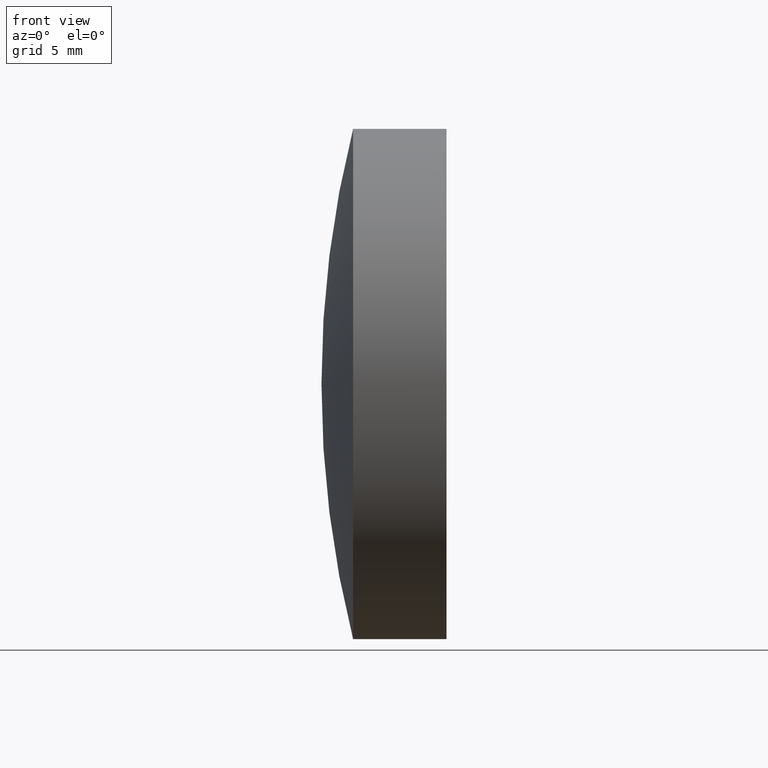
[diagram: clean part render]
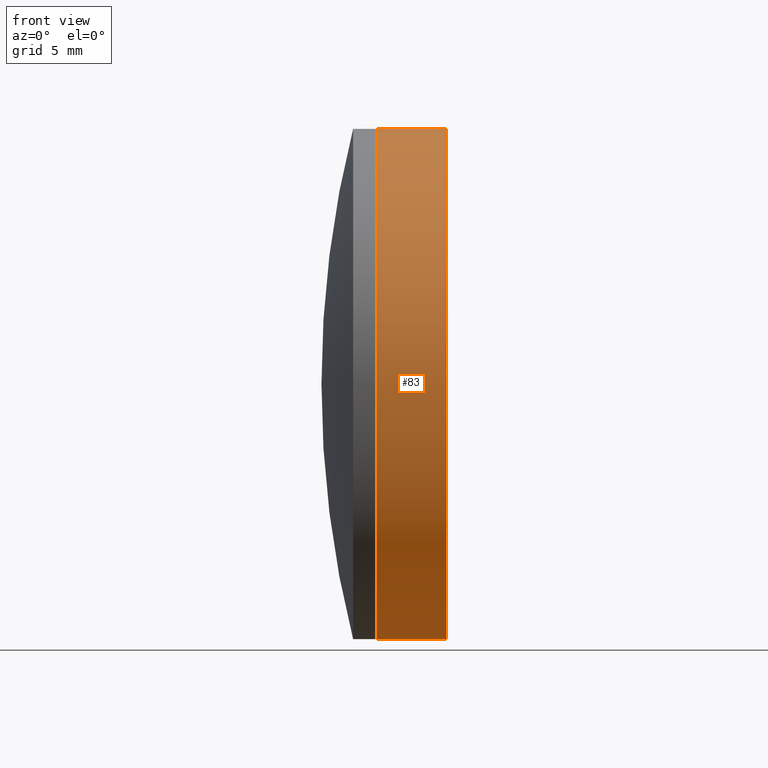
[diagram: same view with one face highlighted and labeled with its STEP entity id]
A machine part, front view. The second image highlights one B-rep face of the part: STEP entity #83.
In plain terms, the highlighted cylindrical surface (partial cylindrical patch) has radius 12.7 mm, axis along (-1, -0, -0).
Its self-contained STEP definition (entity closure, byte-faithful):
#3 = DIRECTION ( 'NONE',  ( 0.0000000000000000000, 0.0000000000000000000, 1.000000000000000000 ) ) ;
#6 = CARTESIAN_POINT ( 'NONE',  ( 335.1955762872631200, 0.0000000000000000000, 12.70000000000003100 ) ) ;
#16 = CARTESIAN_POINT ( 'NONE',  ( -0.5519199926577972300, 0.0000000000000000000, 12.70000000000001400 ) ) ;
#31 = CIRCLE ( 'NONE', #218, 12.70000000000003300 ) ;
#37 = CYLINDRICAL_SURFACE ( 'NONE', #100, 12.70000000000001400 ) ;
#38 = CARTESIAN_POINT ( 'NONE',  ( 335.1955762872631200, 0.0000000000000000000, 0.0000000000000000000 ) ) ;
#40 = CARTESIAN_POINT ( 'NONE',  ( -0.5519199926577972300, 1.555301434917140200E-015, -12.70000000000001400 ) ) ;
#60 = CARTESIAN_POINT ( 'NONE',  ( 338.6678479171338800, 0.0000000000000000000, 0.0000000000000000000 ) ) ;
#71 = DIRECTION ( 'NONE',  ( 0.0000000000000000000, 0.0000000000000000000, 1.000000000000000000 ) ) ;
#80 = VECTOR ( 'NONE', #205, 1000.000000000000000 ) ;
#83 = ADVANCED_FACE ( 'NONE', ( #105 ), #37, .T. ) ;
#86 = VERTEX_POINT ( 'NONE', #6 ) ;
#96 = EDGE_LOOP ( 'NONE', ( #104, #244, #346, #161 ) ) ;
#100 = AXIS2_PLACEMENT_3D ( 'NONE', #252, #145, #3 ) ;
#104 = ORIENTED_EDGE ( 'NONE', *, *, #186, .F. ) ;
#105 = FACE_OUTER_BOUND ( 'NONE', #96, .T. ) ;
#106 = LINE ( 'NONE', #16, #80 ) ;
#114 = VERTEX_POINT ( 'NONE', #166 ) ;
#145 = DIRECTION ( 'NONE',  ( -1.000000000000000000, -0.0000000000000000000, -0.0000000000000000000 ) ) ;
#160 = AXIS2_PLACEMENT_3D ( 'NONE', #60, #297, #191 ) ;
#161 = ORIENTED_EDGE ( 'NONE', *, *, #168, .F. ) ;
#166 = CARTESIAN_POINT ( 'NONE',  ( 338.6678479171338800, 1.555301434917139000E-015, -12.69999999999999200 ) ) ;
#168 = EDGE_CURVE ( 'NONE', #337, #86, #31, .T. ) ;
#175 = LINE ( 'NONE', #40, #325 ) ;
#186 = EDGE_CURVE ( 'NONE', #114, #337, #175, .T. ) ;
#188 = VERTEX_POINT ( 'NONE', #199 ) ;
#191 = DIRECTION ( 'NONE',  ( 0.0000000000000000000, 0.0000000000000000000, 1.000000000000000000 ) ) ;
#199 = CARTESIAN_POINT ( 'NONE',  ( 338.6678479171338800, 0.0000000000000000000, 12.69999999999999200 ) ) ;
#205 = DIRECTION ( 'NONE',  ( -1.000000000000000000, -0.0000000000000000000, -0.0000000000000000000 ) ) ;
#208 = CARTESIAN_POINT ( 'NONE',  ( 335.1955762872631200, 1.555301434917142400E-015, -12.70000000000002200 ) ) ;
#218 = AXIS2_PLACEMENT_3D ( 'NONE', #38, #226, #71 ) ;
#226 = DIRECTION ( 'NONE',  ( -1.000000000000000000, -0.0000000000000000000, -0.0000000000000000000 ) ) ;
#228 = DIRECTION ( 'NONE',  ( -1.000000000000000000, -0.0000000000000000000, -0.0000000000000000000 ) ) ;
#237 = CIRCLE ( 'NONE', #160, 12.69999999999999200 ) ;
#244 = ORIENTED_EDGE ( 'NONE', *, *, #319, .T. ) ;
#252 = CARTESIAN_POINT ( 'NONE',  ( -0.5519199926577972300, 0.0000000000000000000, 0.0000000000000000000 ) ) ;
#272 = EDGE_CURVE ( 'NONE', #188, #86, #106, .T. ) ;
#297 = DIRECTION ( 'NONE',  ( -1.000000000000000000, -0.0000000000000000000, -0.0000000000000000000 ) ) ;
#319 = EDGE_CURVE ( 'NONE', #114, #188, #237, .T. ) ;
#325 = VECTOR ( 'NONE', #228, 1000.000000000000000 ) ;
#337 = VERTEX_POINT ( 'NONE', #208 ) ;
#346 = ORIENTED_EDGE ( 'NONE', *, *, #272, .T. ) ;